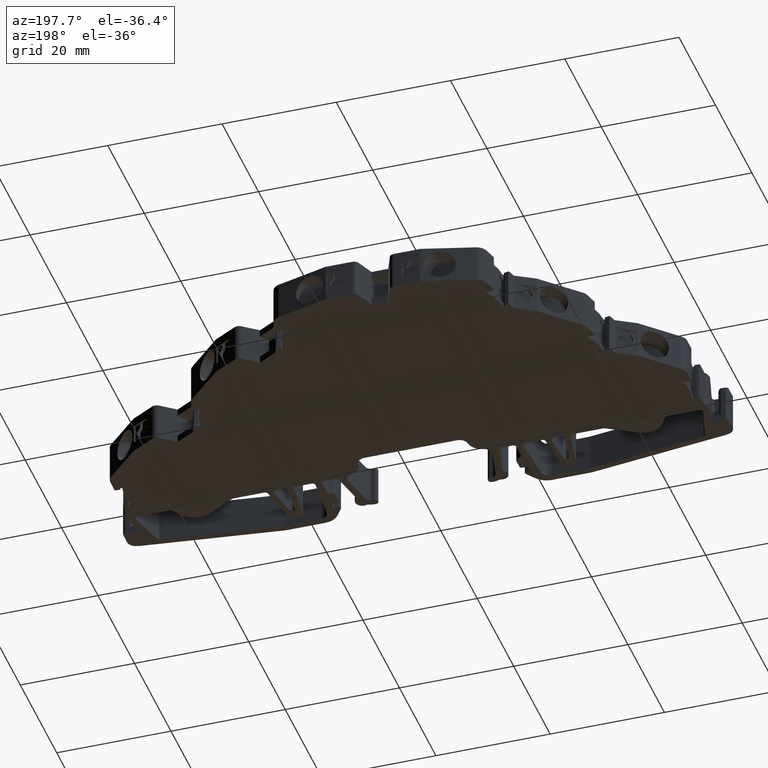
[diagram: clean part render]
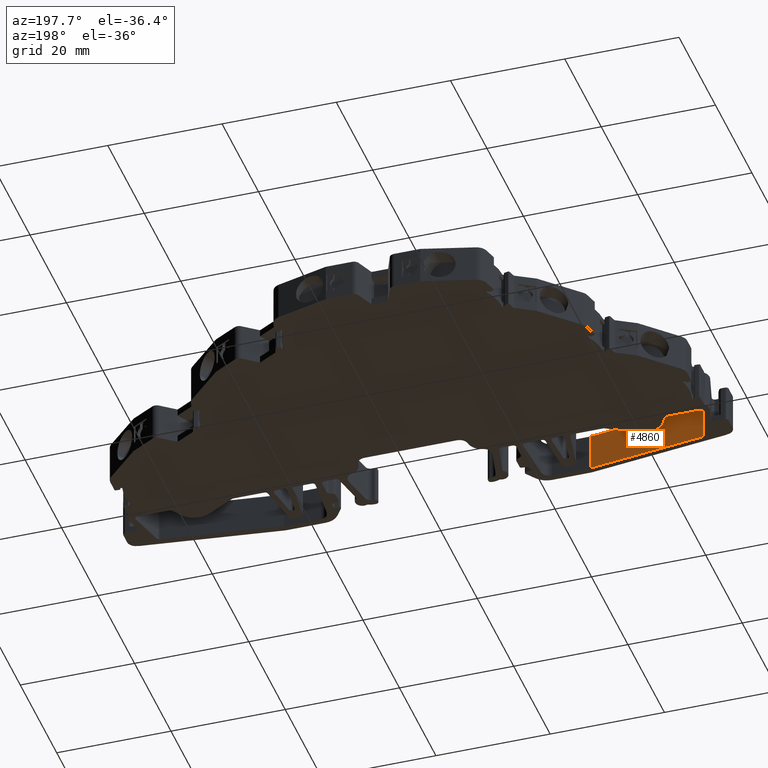
[diagram: same view with one face highlighted and labeled with its STEP entity id]
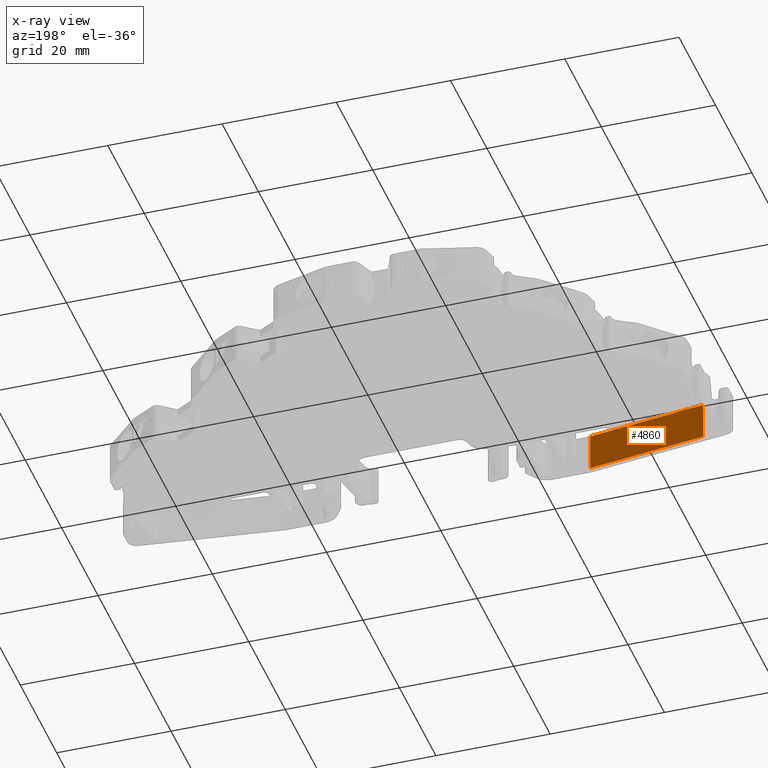
[diagram: x-ray of the same camera — body ghosted, the highlighted face saturated]
A machine part, auxiliary view. The second image highlights one B-rep face of the part: STEP entity #4860.
The next image is the same camera in x-ray: the body ghosted, the highlighted face saturated — about 0% of this face is hidden behind the body in this view.
In plain terms, the highlighted planar face has unit normal (0.1305, 0.9914, 0).
Its self-contained STEP definition (entity closure, byte-faithful):
#597 = VERTEX_POINT ( 'NONE', #21489 ) ;
#793 = CARTESIAN_POINT ( 'NONE',  ( 211.0648998915945100, 9.397868207320929200, -0.3499999999999996400 ) ) ;
#972 = VERTEX_POINT ( 'NONE', #793 ) ;
#4460 = LINE ( 'NONE', #4461, #12566 ) ;
#4461 = CARTESIAN_POINT ( 'NONE',  ( 231.7143326500800000, 6.679318810903359900, -0.3499999999999996400 ) ) ;
#4464 = DIRECTION ( 'NONE',  ( -0.9914448613738107200, 0.1305261922200500700, 0.0000000000000000000 ) ) ;
#4860 = ADVANCED_FACE ( 'NONE', ( #8966 ), #8929, .T. ) ;
#5027 = EDGE_CURVE ( 'NONE', #21885, #21883, #20913, .T. ) ;
#5202 = EDGE_CURVE ( 'NONE', #597, #972, #4460, .T. ) ;
#6001 = EDGE_CURVE ( 'NONE', #597, #21885, #14893, .T. ) ;
#6019 = EDGE_CURVE ( 'NONE', #972, #21883, #14915, .T. ) ;
#6817 = CARTESIAN_POINT ( 'NONE',  ( 231.7143326500800000, 6.679318810903359900, 6.200000000000001100 ) ) ;
#6863 = CARTESIAN_POINT ( 'NONE',  ( 211.0648998915945100, 9.397868207320929200, 6.200000000000001100 ) ) ;
#7647 = ORIENTED_EDGE ( 'NONE', *, *, #5202, .T. ) ;
#7650 = ORIENTED_EDGE ( 'NONE', *, *, #5027, .F. ) ;
#7656 = ORIENTED_EDGE ( 'NONE', *, *, #6019, .T. ) ;
#7696 = ORIENTED_EDGE ( 'NONE', *, *, #6001, .F. ) ;
#8929 = PLANE ( 'NONE',  #22747 ) ;
#8966 = FACE_OUTER_BOUND ( 'NONE', #21381, .T. ) ;
#8969 = DIRECTION ( 'NONE',  ( 0.1305261922200501600, 0.9914448613738106000, 0.0000000000000000000 ) ) ;
#8970 = DIRECTION ( 'NONE',  ( -0.9914448613738106000, 0.1305261922200501600, 0.0000000000000000000 ) ) ;
#8981 = CARTESIAN_POINT ( 'NONE',  ( 231.7143326500800000, 6.679318810903359900, -29.27624599594290100 ) ) ;
#12566 = VECTOR ( 'NONE', #4464, 999.9999999999998900 ) ;
#13507 = VECTOR ( 'NONE', #14874, 1000.000000000000000 ) ;
#13530 = VECTOR ( 'NONE', #14927, 1000.000000000000000 ) ;
#14861 = CARTESIAN_POINT ( 'NONE',  ( 231.7143326500800000, 6.679318810903359900, -29.27624599594290100 ) ) ;
#14874 = DIRECTION ( 'NONE',  ( 0.0000000000000000000, 0.0000000000000000000, 1.000000000000000000 ) ) ;
#14893 = LINE ( 'NONE', #14861, #13507 ) ;
#14915 = LINE ( 'NONE', #14926, #13530 ) ;
#14926 = CARTESIAN_POINT ( 'NONE',  ( 211.0648998915945100, 9.397868207320929200, -29.27624599594290100 ) ) ;
#14927 = DIRECTION ( 'NONE',  ( 0.0000000000000000000, 0.0000000000000000000, 1.000000000000000000 ) ) ;
#20885 = CARTESIAN_POINT ( 'NONE',  ( 209.0897975304858400, 9.657895366151644000, 6.200000000000000200 ) ) ;
#20913 = LINE ( 'NONE', #20885, #22936 ) ;
#20918 = DIRECTION ( 'NONE',  ( -0.9914448613738107200, 0.1305261922200500700, 0.0000000000000000000 ) ) ;
#21381 = EDGE_LOOP ( 'NONE', ( #7696, #7647, #7656, #7650 ) ) ;
#21489 = CARTESIAN_POINT ( 'NONE',  ( 231.7143326500800000, 6.679318810903359900, -0.3499999999999996400 ) ) ;
#21883 = VERTEX_POINT ( 'NONE', #6863 ) ;
#21885 = VERTEX_POINT ( 'NONE', #6817 ) ;
#22747 = AXIS2_PLACEMENT_3D ( 'NONE', #8981, #8969, #8970 ) ;
#22936 = VECTOR ( 'NONE', #20918, 999.9999999999998900 ) ;